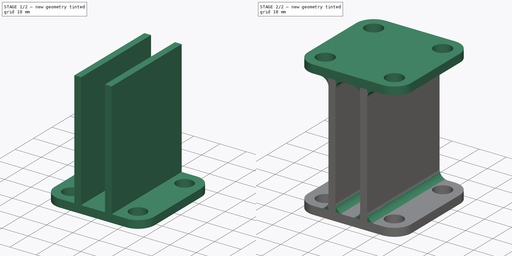
[diagram: build sequence overview — one tinted view per stage of 2, left to right]
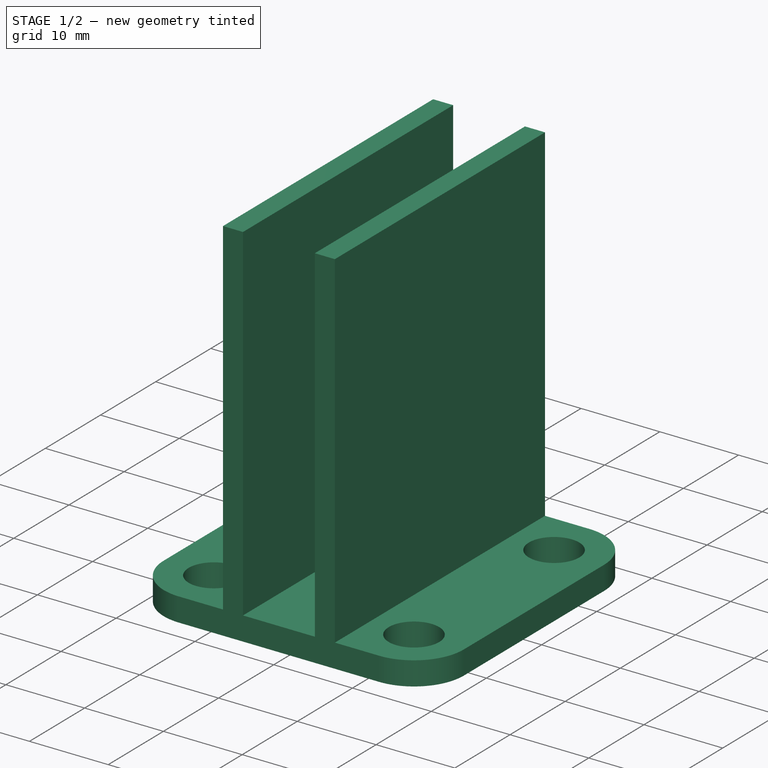
[diagram: stage 1 of 2 — iso view after this stage's code; geometry added in this stage tinted green]
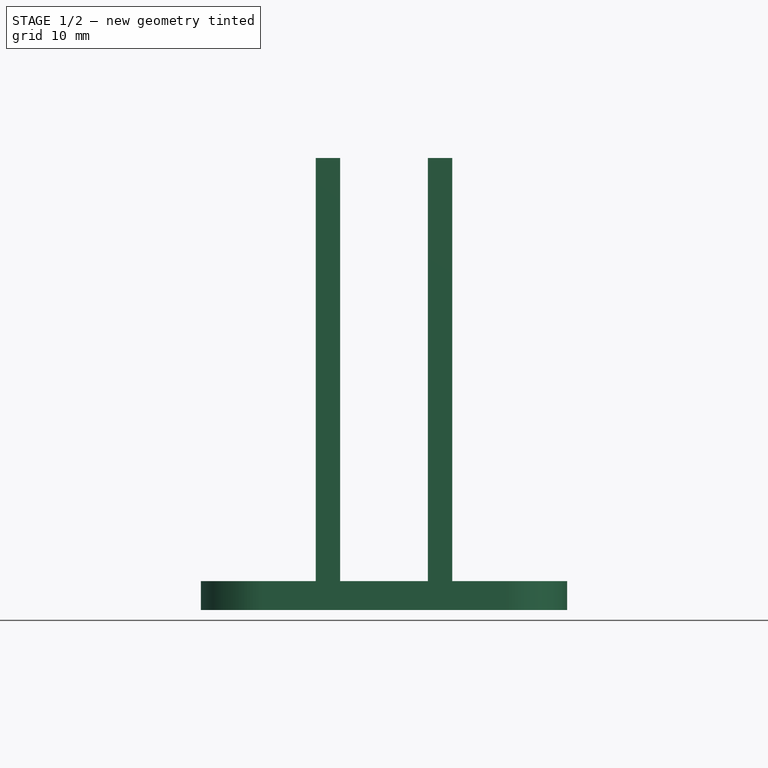
[diagram: stage 1 of 2 — front view after this stage's code; geometry added in this stage tinted green]
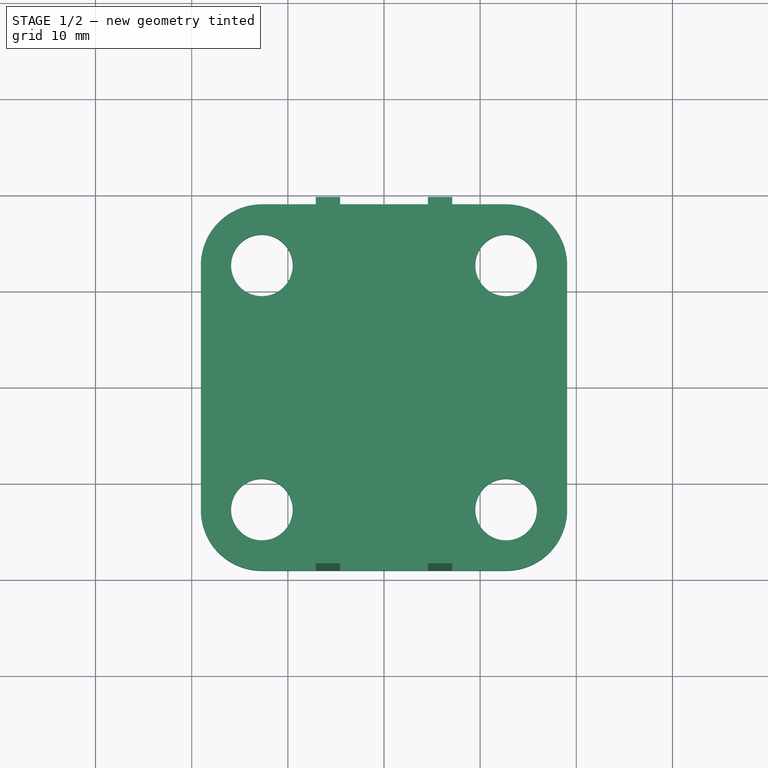
[diagram: stage 1 of 2 — top view after this stage's code; geometry added in this stage tinted green]
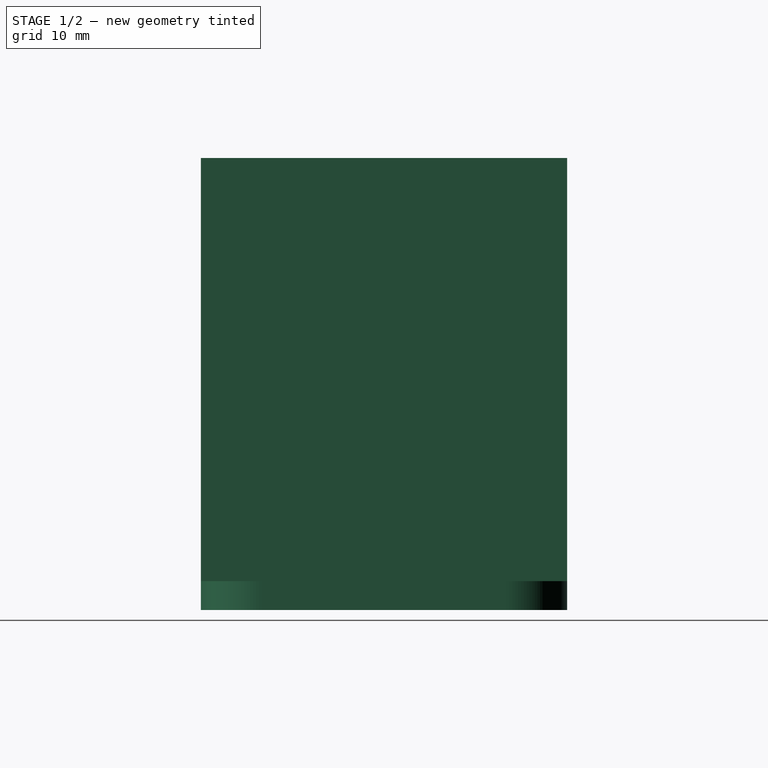
[diagram: stage 1 of 2 — right view after this stage's code; geometry added in this stage tinted green]
FCSTD DOCUMENT  (FreeCAD 0.19R24344 (Git))
Label: Stand_MicroManipulator
License: All rights reserved
LicenseURL: http://en.wikipedia.org/wiki/All_rights_reserved
objects: Sketcher::SketchObject×3, PartDesign::Pad×3, PartDesign::CoordinateSystem×2, PartDesign::Fillet×1, PartDesign::Body×1
note: 14 computed .brp shape members not serialized (recipe doc carries the construction recipe); baked Part::Feature solids carry a one-line shape summary decoded from their .brp

FEATURE [Sketcher::SketchObject] Sketch
  FullyConstrained = true
  MapMode = 5
  Support = -> [XY_Plane]
  sketch-geometry (12):
    g0: LineSegment StartX=-12.7 StartY=19.05 StartZ=0 EndX=12.7 EndY=19.05 EndZ=0
    g1: LineSegment StartX=19.05 StartY=12.7 StartZ=0 EndX=19.05 EndY=-12.7 EndZ=0
    g2: LineSegment StartX=12.7 StartY=-19.05 StartZ=0 EndX=-12.7 EndY=-19.05 EndZ=0
    g3: LineSegment StartX=-19.05 StartY=-12.7 StartZ=0 EndX=-19.05 EndY=12.7 EndZ=0
    g4: Circle CenterX=-12.7 CenterY=12.7 CenterZ=0 NormalX=0 NormalY=0 NormalZ=1 AngleXU=0 Radius=3.2
    g5: Circle CenterX=12.7 CenterY=12.7 CenterZ=0 NormalX=0 NormalY=0 NormalZ=1 AngleXU=0 Radius=3.2
    g6: Circle CenterX=12.7 CenterY=-12.7 CenterZ=0 NormalX=0 NormalY=0 NormalZ=1 AngleXU=0 Radius=3.2
    g7: Circle CenterX=-12.7 CenterY=-12.7 CenterZ=0 NormalX=0 NormalY=0 NormalZ=1 AngleXU=0 Radius=3.2
    g8: ArcOfCircle CenterX=-12.7 CenterY=12.7 CenterZ=0 NormalX=0 NormalY=0 NormalZ=1 AngleXU=0 Radius=6.35 StartAngle=1.5708 EndAngle=3.14159
    g9: ArcOfCircle CenterX=-12.7 CenterY=-12.7 CenterZ=0 NormalX=0 NormalY=0 NormalZ=1 AngleXU=0 Radius=6.35 StartAngle=3.14159 EndAngle=4.71239
    g10: ArcOfCircle CenterX=12.7 CenterY=-12.7 CenterZ=0 NormalX=0 NormalY=0 NormalZ=1 AngleXU=0 Radius=6.35 StartAngle=4.71239 EndAngle=6.28319
    g11: ArcOfCircle CenterX=12.7 CenterY=12.7 CenterZ=0 NormalX=0 NormalY=0 NormalZ=1 AngleXU=0 Radius=6.35 StartAngle=0 EndAngle=1.5708
  constraints (26):
    c: Horizontal(g0)
    c: Horizontal(g2)
    c: Vertical(g1)
    c: Vertical(g3)
    c: Equal(g6,g7)
    c: Equal(g7,g4)
    c: Equal(g4,g5)
    c: Diameter(g4) = 6.4
    c: DistanceX(g4,g5) = 25.4
    c: DistanceY(g7,g4) = 25.4
    c: Symmetric(g4,g7,g-1)
    c: Symmetric(g4,g5,g-2)
    c: Symmetric(g6,g5,g-1)
    c: Tangent(g0,g8) = 1.5708
    c: Tangent(g3,g8) = 1.5708
    c: Tangent(g3,g9) = 1.5708
    c: Tangent(g2,g9) = 1.5708
    c: Tangent(g2,g10) = 1.5708
    c: Tangent(g1,g10) = 1.5708
    c: Tangent(g0,g11) = 1.5708
    c: Tangent(g1,g11) = 1.5708
    c: Equal(g11,g10)
    c: Coincident(g11,g5)
    c: Diameter(g11) = 12.7
    c: Coincident(g8,g4)
    c: Coincident(g9,g7)
FEATURE [PartDesign::Pad] Pad
  Direction = (1,1,1)
  Length = 3
  Length2 = 100
  Profile = -> Sketch
  Type = 0
FEATURE [Sketcher::SketchObject] Sketch001
  ExternalGeometry = -> [Pad]
  FullyConstrained = true
  MapMode = 5
  Placement = pos=(0,0,3) rot=(0,0,1;0rad)
  Support = -> [Pad]
  sketch-geometry (8):
    g0: LineSegment StartX=-7.1 StartY=19.05 StartZ=0 EndX=-4.56 EndY=19.05 EndZ=0
    g1: LineSegment StartX=-4.56 StartY=19.05 StartZ=0 EndX=-4.56 EndY=-19.05 EndZ=0
    g2: LineSegment StartX=-4.56 StartY=-19.05 StartZ=0 EndX=-7.1 EndY=-19.05 EndZ=0
    g3: LineSegment StartX=-7.1 StartY=-19.05 StartZ=0 EndX=-7.1 EndY=19.05 EndZ=0
    g4: LineSegment StartX=4.56 StartY=19.05 StartZ=0 EndX=7.1 EndY=19.05 EndZ=0
    g5: LineSegment StartX=7.1 StartY=19.05 StartZ=0 EndX=7.1 EndY=-19.05 EndZ=0
    g6: LineSegment StartX=7.1 StartY=-19.05 StartZ=0 EndX=4.56 EndY=-19.05 EndZ=0
    g7: LineSegment StartX=4.56 StartY=-19.05 StartZ=0 EndX=4.56 EndY=19.05 EndZ=0
  constraints (23):
    c: Coincident(g0,g1)
    c: Coincident(g1,g2)
    c: Coincident(g2,g3)
    c: Coincident(g3,g0)
    c: Horizontal(g0)
    c: Horizontal(g2)
    c: Vertical(g1)
    c: Vertical(g3)
    c: PointOnObject(g0,g-3)
    c: PointOnObject(g1,g-4)
    c: Coincident(g4,g5)
    c: Coincident(g5,g6)
    c: Coincident(g6,g7)
    c: Coincident(g7,g4)
    c: Horizontal(g4)
    c: Horizontal(g6)
    c: Vertical(g5)
    c: Vertical(g7)
    c: PointOnObject(g5,g-4)
    c: Distance(g0) = 2.54
    c: Distance(g4) = 2.54
    c: Symmetric(g0,g4,g-2)
    c: DistanceX(g-5,g0) = 5.6
FEATURE [PartDesign::Pad] Pad001
  BaseFeature = -> Pad
  Direction = (1,1,1)
  Length = 44
  Length2 = 100
  Profile = -> Sketch001
  Type = 0
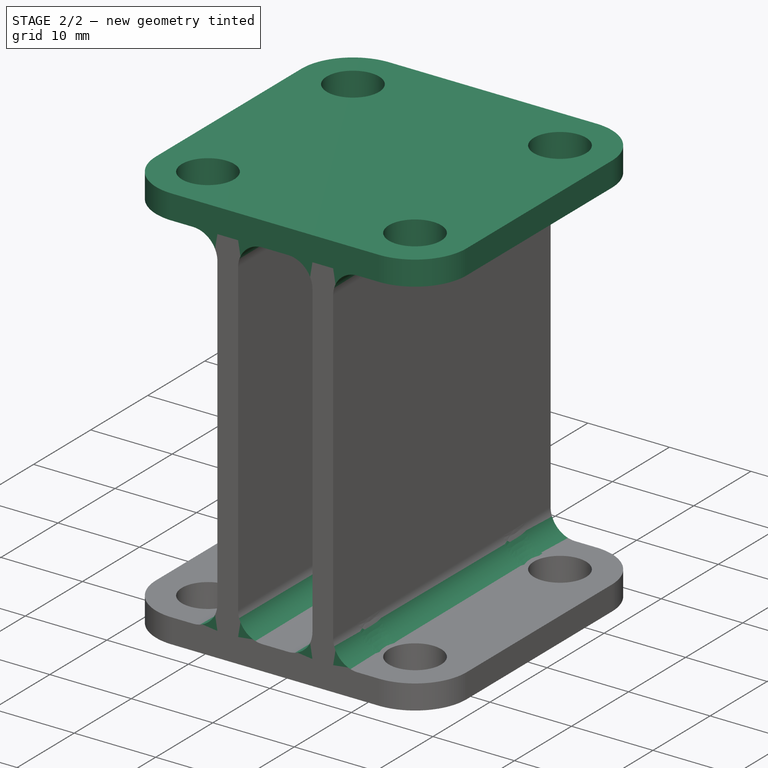
[diagram: stage 2 of 2 — iso view after this stage's code; geometry added in this stage tinted green]
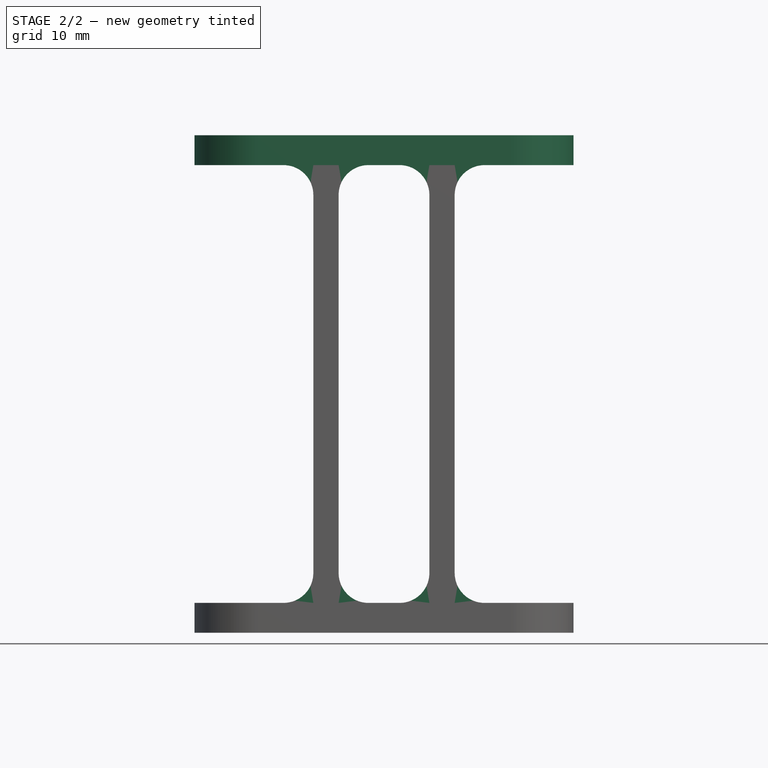
[diagram: stage 2 of 2 — front view after this stage's code; geometry added in this stage tinted green]
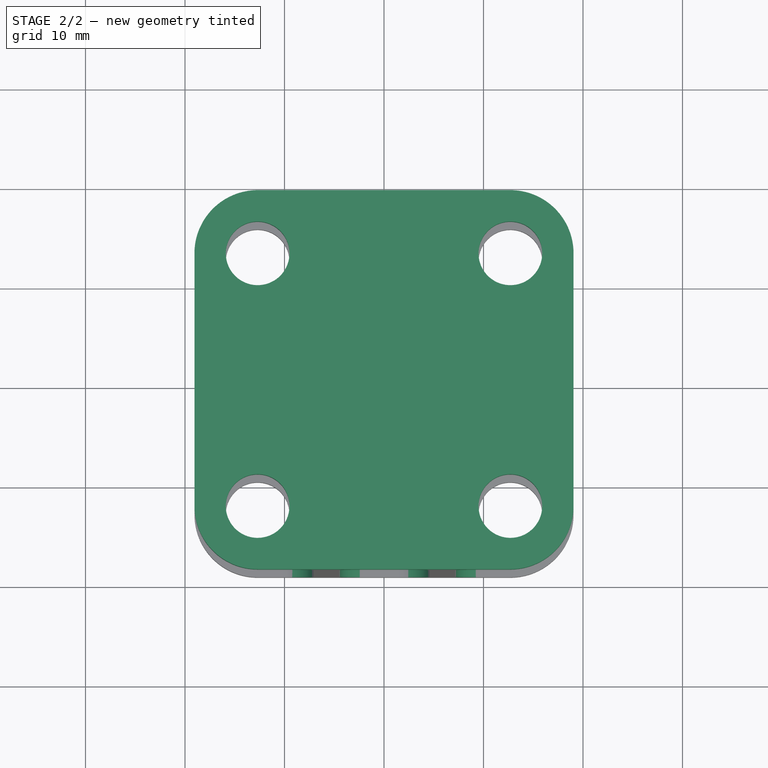
[diagram: stage 2 of 2 — top view after this stage's code; geometry added in this stage tinted green]
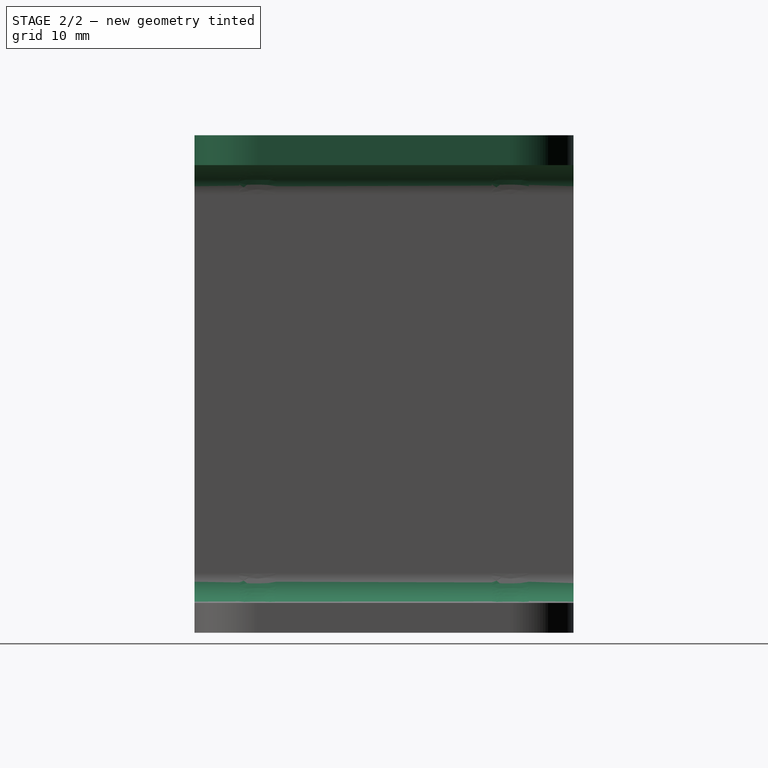
[diagram: stage 2 of 2 — right view after this stage's code; geometry added in this stage tinted green]
FEATURE [Sketcher::SketchObject] Sketch002
  FullyConstrained = true
  MapMode = 5
  Placement = pos=(0,0,47) rot=(0,0,1;0rad)
  Support = -> [Pad001]
  sketch-geometry (12):
    g0: LineSegment StartX=-12.7 StartY=19.05 StartZ=0 EndX=12.7 EndY=19.05 EndZ=0
    g1: LineSegment StartX=19.05 StartY=12.7 StartZ=0 EndX=19.05 EndY=-12.7 EndZ=0
    g2: LineSegment StartX=12.7 StartY=-19.05 StartZ=0 EndX=-12.7 EndY=-19.05 EndZ=0
    g3: LineSegment StartX=-19.05 StartY=-12.7 StartZ=0 EndX=-19.05 EndY=12.7 EndZ=0
    g4: Circle CenterX=-12.7 CenterY=12.7 CenterZ=0 NormalX=0 NormalY=0 NormalZ=1 AngleXU=0 Radius=3.2
    g5: Circle CenterX=12.7 CenterY=12.7 CenterZ=0 NormalX=0 NormalY=0 NormalZ=1 AngleXU=0 Radius=3.2
    g6: Circle CenterX=12.7 CenterY=-12.7 CenterZ=0 NormalX=0 NormalY=0 NormalZ=1 AngleXU=0 Radius=3.2
    g7: Circle CenterX=-12.7 CenterY=-12.7 CenterZ=0 NormalX=0 NormalY=0 NormalZ=1 AngleXU=0 Radius=3.2
    g8: ArcOfCircle CenterX=-12.7 CenterY=12.7 CenterZ=0 NormalX=0 NormalY=0 NormalZ=1 AngleXU=0 Radius=6.35 StartAngle=1.5708 EndAngle=3.14159
    g9: ArcOfCircle CenterX=-12.7 CenterY=-12.7 CenterZ=0 NormalX=0 NormalY=0 NormalZ=1 AngleXU=0 Radius=6.35 StartAngle=3.14159 EndAngle=4.71239
    g10: ArcOfCircle CenterX=12.7 CenterY=-12.7 CenterZ=0 NormalX=0 NormalY=0 NormalZ=1 AngleXU=0 Radius=6.35 StartAngle=4.71239 EndAngle=6.28319
    g11: ArcOfCircle CenterX=12.7 CenterY=12.7 CenterZ=0 NormalX=0 NormalY=0 NormalZ=1 AngleXU=0 Radius=6.35 StartAngle=4.08e-14 EndAngle=1.5708
  constraints (25):
    c: Horizontal(g0)
    c: Horizontal(g2)
    c: Vertical(g1)
    c: DistanceX(g4,g5) = 25.4
    c: DistanceY(g7,g4) = 25.4
    c: Symmetric(g4,g7,g-1)
    c: Symmetric(g4,g5,g-2)
    c: Equal(g6,g7)
    c: Equal(g7,g4)
    c: Equal(g4,g5)
    c: Diameter(g4) = 6.4
    c: Symmetric(g5,g6,g-1)
    c: Tangent(g0,g8) = 1.5708
    c: Tangent(g3,g8) = 1.5708
    c: Tangent(g3,g9) = 1.5708
    c: Tangent(g2,g9) = 1.5708
    c: Tangent(g2,g10) = 1.5708
    c: Tangent(g1,g10) = 1.5708
    c: Tangent(g1,g11) = 1.5708
    c: Tangent(g0,g11) = 1.5708
    c: Coincident(g8,g4)
    c: Coincident(g5,g11)
    c: Coincident(g7,g9)
    c: Coincident(g6,g10)
    c: Diameter(g11) = 12.7
FEATURE [PartDesign::Pad] Pad002
  BaseFeature = -> Pad001
  Direction = (1,1,1)
  Length = 3
  Length2 = 100
  Profile = -> Sketch002
  Type = 0
FEATURE [PartDesign::Fillet] Fillet
  Base = -> Pad002 [Edge70,Edge37,Edge76,Edge69,Edge49,Edge54,Edge53,Edge12]
  BaseFeature = -> Pad002
  Radius = 3
  SupportTransform = false
FEATURE [PartDesign::CoordinateSystem] LCS_Base
  AttacherType = Attacher::AttachEngine3D
  MapMode = 11
  Placement = pos=(-12.7,-12.7,0) rot=(0,0,1;1.5708rad)
  Support = -> [Fillet]
FEATURE [PartDesign::CoordinateSystem] LCS_Top
  AttacherType = Attacher::AttachEngine3D
  MapMode = 11
  Placement = pos=(-12.7,-12.7,50) rot=(0,0,1;1.5708rad)
  Support = -> [Fillet]
FEATURE [PartDesign::Body] Body  label="Stand"
  Group = -> [Sketch,Pad,Sketch001,Pad001,Sketch002,Pad002,Fillet,LCS_Base,LCS_Top]
  Origin = -> Origin
  Tip = -> Fillet
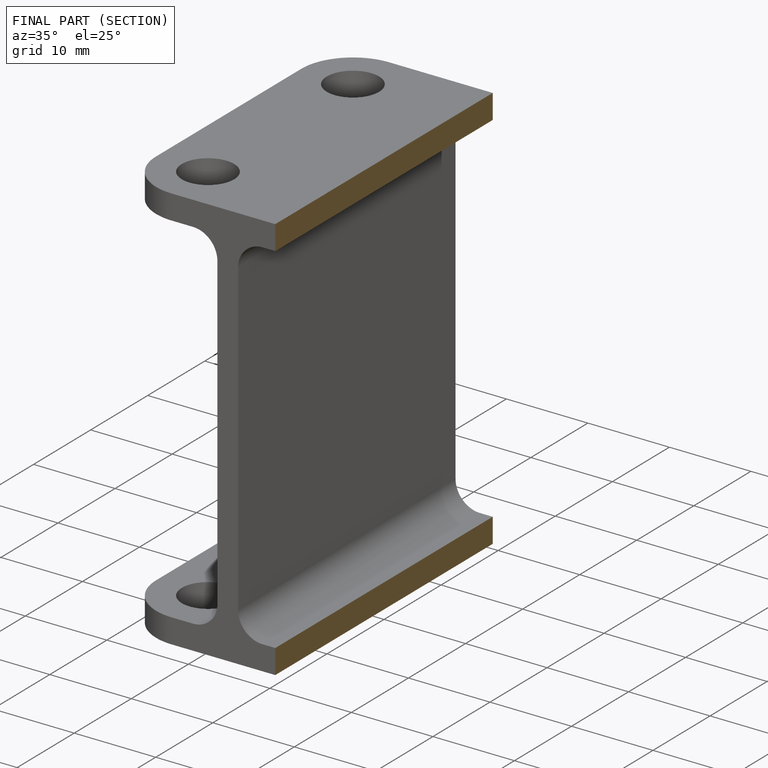
[diagram: finished part — half-section view (interior)]
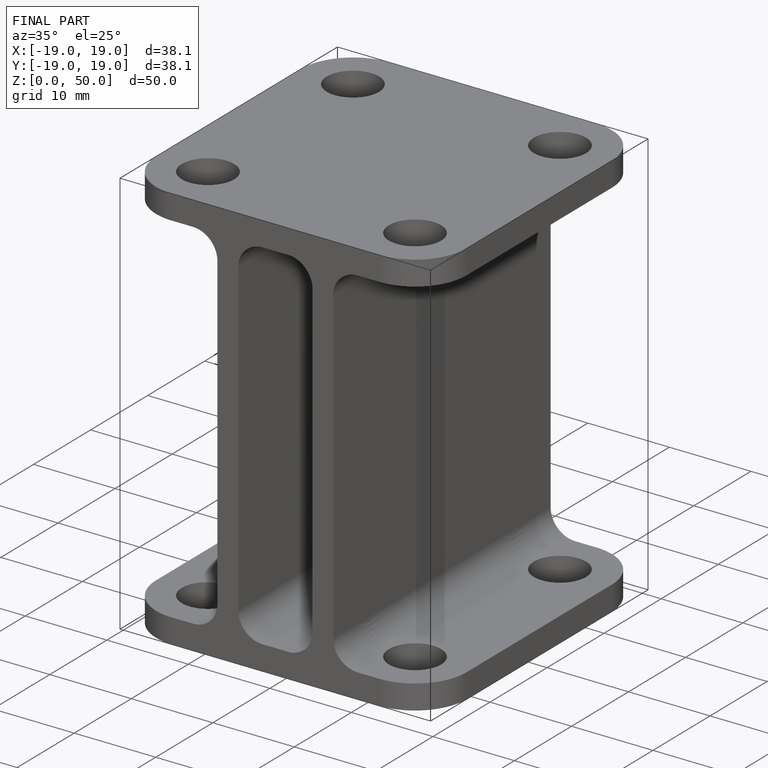
[diagram: finished part — iso view with bounding-box wireframe]
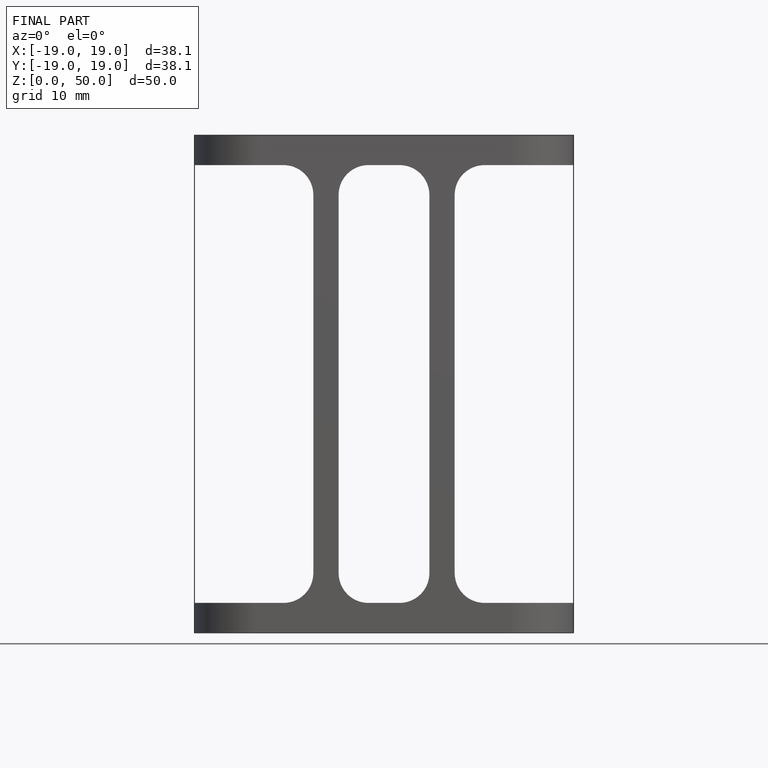
[diagram: finished part — front view with bounding-box wireframe]
